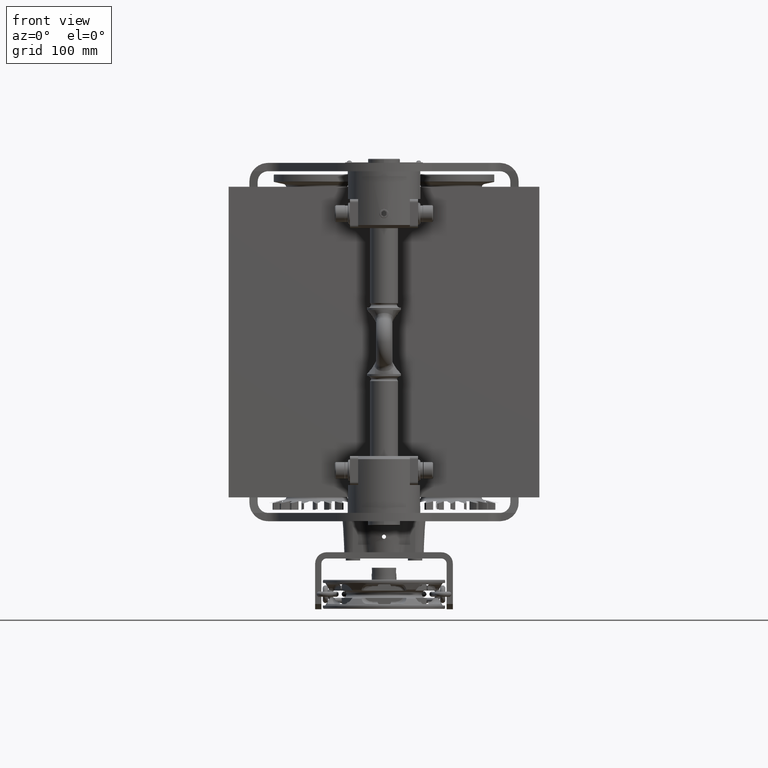
[diagram: clean part render]
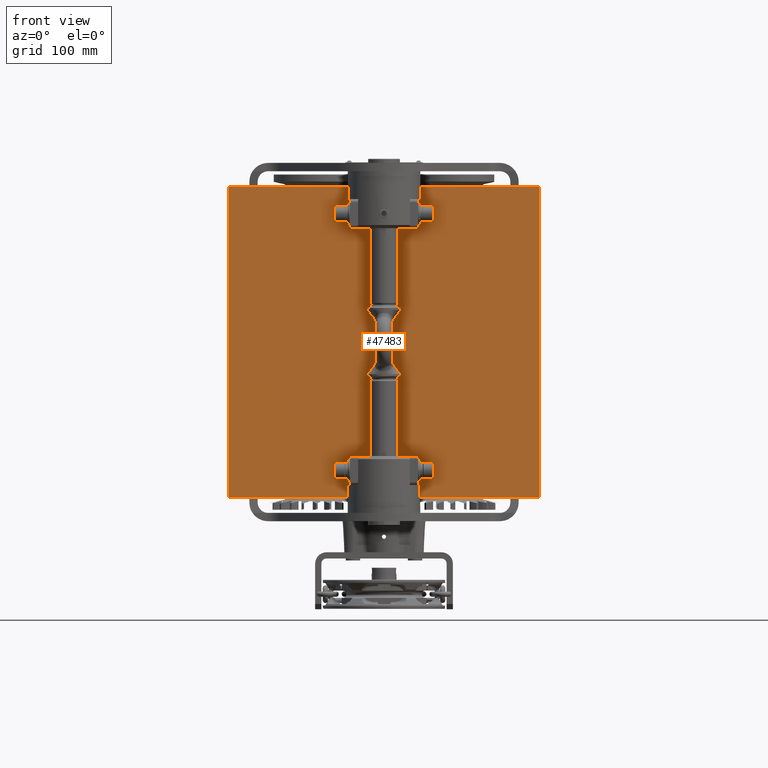
[diagram: same view with one face highlighted and labeled with its STEP entity id]
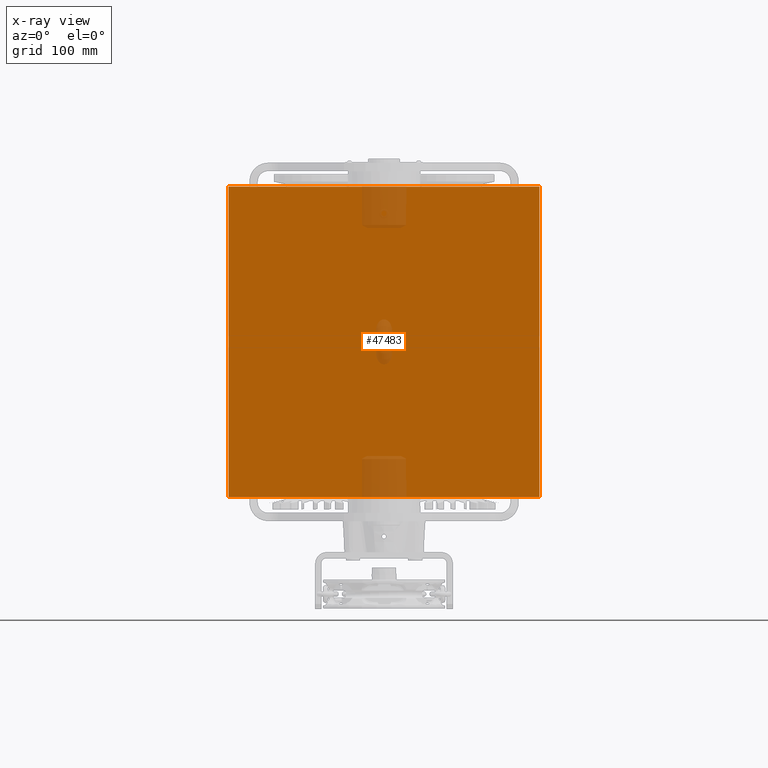
[diagram: x-ray of the same camera — body ghosted, the highlighted face saturated]
A machine part, front view. The second image highlights one B-rep face of the part: STEP entity #47483.
The next image is the same camera in x-ray: the body ghosted, the highlighted face saturated — about 4% of this face is hidden behind the body in this view.
In plain terms, the highlighted planar face has unit normal (-0, -1, 0).
Its self-contained STEP definition (entity closure, byte-faithful):
#699 = EDGE_CURVE ( 'NONE', #31557, #31456, #14464, .T. ) ;
#1106 = ORIENTED_EDGE ( 'NONE', *, *, #7247, .F. ) ;
#2337 = DIRECTION ( 'NONE',  ( -1.000000000000000000, 2.645435875969847300E-017, 3.677613769070833000E-016 ) ) ;
#2632 = CARTESIAN_POINT ( 'NONE',  ( -150.0000000000000900, -149.9999999999994000, -149.9999999999994000 ) ) ;
#2844 = ORIENTED_EDGE ( 'NONE', *, *, #16981, .F. ) ;
#3029 = LINE ( 'NONE', #17422, #17515 ) ;
#6052 = DIRECTION ( 'NONE',  ( 3.330669073875467200E-016, 4.187093642028518100E-015, 1.000000000000000000 ) ) ;
#7247 = EDGE_CURVE ( 'NONE', #20112, #31456, #25494, .T. ) ;
#7772 = DIRECTION ( 'NONE',  ( -3.328978489157281500E-017, -1.000000000000000000, 4.187093642028518100E-015 ) ) ;
#9113 = EDGE_CURVE ( 'NONE', #32989, #31557, #37840, .T. ) ;
#11079 = DIRECTION ( 'NONE',  ( 3.330669073875467200E-016, 4.187093642028518100E-015, 1.000000000000000000 ) ) ;
#11311 = ORIENTED_EDGE ( 'NONE', *, *, #9113, .T. ) ;
#12055 = CARTESIAN_POINT ( 'NONE',  ( 149.9999999999999100, -149.9999999999994900, -149.9999999999995200 ) ) ;
#13147 = CARTESIAN_POINT ( 'NONE',  ( -149.9999999999999700, -149.9999999999981500, 150.0000000000005700 ) ) ;
#14464 = LINE ( 'NONE', #22065, #49333 ) ;
#16981 = EDGE_CURVE ( 'NONE', #32989, #20112, #3029, .T. ) ;
#17422 = CARTESIAN_POINT ( 'NONE',  ( 149.9999999999999100, -149.9999999999994900, -149.9999999999995200 ) ) ;
#17515 = VECTOR ( 'NONE', #46082, 1000.000000000000000 ) ;
#17646 = VECTOR ( 'NONE', #23374, 1000.000000000000000 ) ;
#20112 = VERTEX_POINT ( 'NONE', #2632 ) ;
#22065 = CARTESIAN_POINT ( 'NONE',  ( 150.0000000000000300, -149.9999999999981500, 150.0000000000004500 ) ) ;
#22337 = CARTESIAN_POINT ( 'NONE',  ( 150.0000000000000300, -149.9999999999981500, 150.0000000000004500 ) ) ;
#23374 = DIRECTION ( 'NONE',  ( 3.330669073875467200E-016, 4.187093642028518100E-015, 1.000000000000000000 ) ) ;
#23892 = AXIS2_PLACEMENT_3D ( 'NONE', #47687, #7772, #11079 ) ;
#25494 = LINE ( 'NONE', #50331, #31149 ) ;
#25914 = EDGE_LOOP ( 'NONE', ( #1106, #2844, #11311, #29907 ) ) ;
#29907 = ORIENTED_EDGE ( 'NONE', *, *, #699, .T. ) ;
#31149 = VECTOR ( 'NONE', #6052, 1000.000000000000000 ) ;
#31456 = VERTEX_POINT ( 'NONE', #13147 ) ;
#31557 = VERTEX_POINT ( 'NONE', #22337 ) ;
#32989 = VERTEX_POINT ( 'NONE', #35037 ) ;
#35037 = CARTESIAN_POINT ( 'NONE',  ( 149.9999999999999100, -149.9999999999994900, -149.9999999999995200 ) ) ;
#37694 = FACE_OUTER_BOUND ( 'NONE', #25914, .T. ) ;
#37840 = LINE ( 'NONE', #12055, #17646 ) ;
#42714 = PLANE ( 'NONE',  #23892 ) ;
#46082 = DIRECTION ( 'NONE',  ( -1.000000000000000000, 2.645435875969847300E-017, 3.677613769070833000E-016 ) ) ;
#47483 = ADVANCED_FACE ( 'NONE', ( #37694 ), #42714, .T. ) ;
#47687 = CARTESIAN_POINT ( 'NONE',  ( 149.9999999999999100, -149.9999999999994900, -149.9999999999995200 ) ) ;
#49333 = VECTOR ( 'NONE', #2337, 1000.000000000000000 ) ;
#50331 = CARTESIAN_POINT ( 'NONE',  ( -150.0000000000000900, -149.9999999999994000, -149.9999999999994000 ) ) ;